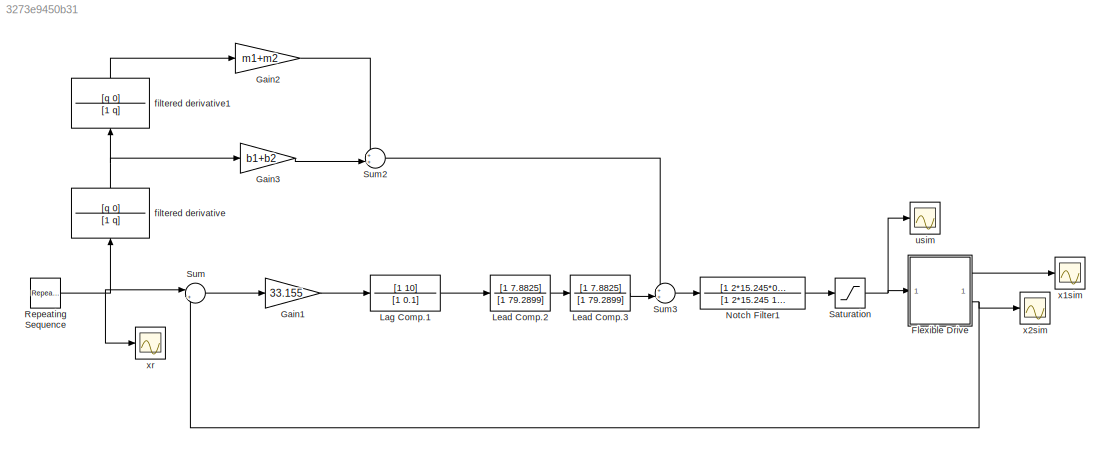
MODEL slx_3273e9450b31
KIND model
CONFIG AbsTol = auto
CONFIG EnableMultiTasking = on
CONFIG FixedStep = Ts
CONFIG MaxStep = auto
CONFIG MinStep = auto
CONFIG RelTol = 1e-3
CONFIG SampleTimeConstraint = Unconstrained
CONFIG SolverName = ode4
CONFIG StartTime = 0.0
CONFIG StopTime = 4
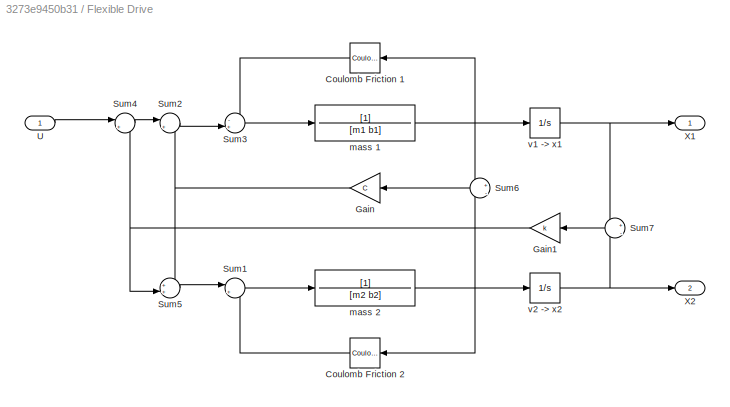
BLOCK [SubSystem] Flexible Drive
BLOCK [Reference] Flexible Drive/Coulomb Friction 1  REF=simulink/Discontinuities/Coulomb &
Viscous Friction
  NameLocation = top
  SourceBlock = simulink/Discontinuities/Coulomb &\nViscous Friction
  SourceType = Coulombic and Viscous Friction
BLOCK [Reference] Flexible Drive/Coulomb Friction 2  REF=simulink/Discontinuities/Coulomb &
Viscous Friction
  SourceBlock = simulink/Discontinuities/Coulomb &\nViscous Friction
  SourceType = Coulombic and Viscous Friction
BLOCK [Gain] Flexible Drive/Gain
  Gain = C
  NameLocation = top
  OutDataTypeStr = Inherit: Same as input
  ParamDataTypeStr = Inherit: Same as input
  SaturateOnIntegerOverflow = on
BLOCK [Gain] Flexible Drive/Gain1
  Gain = k
  NameLocation = top
  OutDataTypeStr = Inherit: Same as input
  ParamDataTypeStr = Inherit: Same as input
  SaturateOnIntegerOverflow = on
BLOCK [Sum] Flexible Drive/Sum1
  Inputs = |+-
  SaturateOnIntegerOverflow = on
BLOCK [Sum] Flexible Drive/Sum2
  Inputs = |+-
  SaturateOnIntegerOverflow = on
BLOCK [Sum] Flexible Drive/Sum3
  Inputs = -+|
  SaturateOnIntegerOverflow = on
BLOCK [Sum] Flexible Drive/Sum4
  Inputs = |+-
  SaturateOnIntegerOverflow = on
BLOCK [Sum] Flexible Drive/Sum5
  Inputs = ++|
  SaturateOnIntegerOverflow = on
BLOCK [Sum] Flexible Drive/Sum6
  Inputs = +|-
  NameLocation = top
  SaturateOnIntegerOverflow = on
BLOCK [Sum] Flexible Drive/Sum7
  Inputs = +|-
  NameLocation = top
  SaturateOnIntegerOverflow = on
BLOCK [Inport] Flexible Drive/U
BLOCK [Outport] Flexible Drive/X1
  VectorParamsAs1DForOutWhenUnconnected = off
BLOCK [Outport] Flexible Drive/X2
  Port = 2
  VectorParamsAs1DForOutWhenUnconnected = off
BLOCK [TransferFcn] Flexible Drive/mass 1
  Denominator = [m1 b1]
  NameLocation = top
BLOCK [TransferFcn] Flexible Drive/mass 2
  Denominator = [m2 b2]
  NameLocation = top
BLOCK [Integrator] Flexible Drive/v1 -> x1
BLOCK [Integrator] Flexible Drive/v2 -> x2
BLOCK [Gain] Gain1
  Gain = 33.155
BLOCK [Gain] Gain2
  Gain = m1+m2
BLOCK [Gain] Gain3
  Gain = b1+b2
BLOCK [TransferFcn] Lag Comp.1
  Denominator = [1 0.1]
  Numerator = [1 10]
BLOCK [TransferFcn] Lead Comp.2
  Denominator = [1 79.2899]
  Numerator = [1 7.8825]
BLOCK [TransferFcn] Lead Comp.3
  Denominator = [1 79.2899]
  Numerator = [1 7.8825]
BLOCK [TransferFcn] Notch Filter1
  Denominator = [1 2*15.245 15.245^2]
  Numerator = [1 2*15.245*0.707 15.245^2]
BLOCK [Reference] Repeating Sequence  REF=simulink/Sources/Repeating
Sequence
  SourceBlock = simulink/Sources/Repeating\nSequence
  SourceType = Repeating table
BLOCK [Saturate] Saturation
  LowerLimit = -8
  UpperLimit = 8
BLOCK [Sum] Sum
  Inputs = |+-
BLOCK [Sum] Sum2
  Inputs = ++|
BLOCK [Sum] Sum3
  Inputs = ++|
BLOCK [TransferFcn] filtered derivative
  Denominator = [1 q]
  NameLocation = left
  Numerator = [q 0]
BLOCK [TransferFcn] filtered derivative1
  Denominator = [1 q]
  NameLocation = left
  Numerator = [q 0]
BLOCK [Scope] usim
  ActiveDisplayYMaximum = 1.53887
  ActiveDisplayYMinimum = -1.46798
  DataLogging = on
  DataLoggingSaveFormat = Structure With Time
  DataLoggingVariableName = usim
  Floating = off
  GraphicalSettings = {"GraphicalSettings":{"LegacySettings":true,"Style":{"Style":{"AxesColor":"[0 0 0]","ChannelNames":[""],"ColorOrder":"[1 1 0.0666666666666667;0.0745098039215686 0.623529411764706 1;1 0.411764705882353 0.16078431372549;0.392156862745098 0.831372549019608 0.0745098039215686;0.717647058823529 0.274509803921569 1;0.0588235294117647 1 1;1 0.0745098039215686 0.650980392156863]","CurrentConfiguration":"e...<+343ch>
  MultipleDisplayCache = [{"MaxYLimMag":1.53887,"MaxYLimReal":1.53887,"MinYLimMag":0,"MinYLimReal":-1.46798,"PlotAsMagnitudePhase":false,"ShowGrid":true,"ShowLegend":false,"Title":"%<SignalLabel>","YLabel":""}]
  NumInputPorts = 1
  WasSavedAsWebScope = on
BLOCK [Scope] x1sim
  ActiveDisplayYMaximum = 51.4234
  ActiveDisplayYMinimum = -5.71381
  DataLogging = on
  DataLoggingSaveFormat = Structure With Time
  DataLoggingVariableName = x1sim
  Floating = off
  GraphicalSettings = {"GraphicalSettings":{"LegacySettings":true,"Style":{"Style":{"AxesColor":"[0 0 0]","ChannelNames":[""],"ColorOrder":"[1 1 0.0666666666666667;0.0745098039215686 0.623529411764706 1;1 0.411764705882353 0.16078431372549;0.392156862745098 0.831372549019608 0.0745098039215686;0.717647058823529 0.274509803921569 1;0.0588235294117647 1 1;1 0.0745098039215686 0.650980392156863]","CurrentConfiguration":"e...<+368ch>
  MultipleDisplayCache = [{"MaxYLimMag":51.4234,"MaxYLimReal":51.4234,"MinYLimMag":0,"MinYLimReal":-5.71381,"PlotAsMagnitudePhase":false,"ShowGrid":true,"ShowLegend":false,"Title":"%<SignalLabel>","YLabel":""}]
  NumInputPorts = 1
  WasSavedAsWebScope = on
  WindowPosition = [431 174 505 420]
BLOCK [Scope] x2sim
  ActiveDisplayYMaximum = 52.36743
  ActiveDisplayYMinimum = -5.81886
  DataLogging = on
  DataLoggingSaveFormat = Structure With Time
  DataLoggingVariableName = x2sim
  Floating = off
  GraphicalSettings = {"GraphicalSettings":{"LegacySettings":true,"Style":{"Style":{"AxesColor":"[0 0 0]","ChannelNames":[""],"ColorOrder":"[1 1 0.0666666666666667;0.0745098039215686 0.623529411764706 1;1 0.411764705882353 0.16078431372549;0.392156862745098 0.831372549019608 0.0745098039215686;0.717647058823529 0.274509803921569 1;0.0588235294117647 1 1;1 0.0745098039215686 0.650980392156863]","CurrentConfiguration":"e...<+368ch>
  MultipleDisplayCache = [{"MaxYLimMag":52.36743,"MaxYLimReal":52.36743,"MinYLimMag":0,"MinYLimReal":-5.81886,"PlotAsMagnitudePhase":false,"ShowGrid":true,"ShowLegend":false,"Title":"%<SignalLabel>","YLabel":""}]
  NumInputPorts = 1
  WasSavedAsWebScope = on
  WindowPosition = [477 171 412 427]
BLOCK [Scope] xr
  ActiveDisplayYMaximum = 56.25
  ActiveDisplayYMinimum = -6.25
  DataLogging = on
  DataLoggingSaveFormat = Structure With Time
  DataLoggingVariableName = xr
  Floating = off
  GraphicalSettings = {"GraphicalSettings":{"LegacySettings":true,"Style":{"Style":{"AxesColor":"[0 0 0]","ChannelNames":[""],"ColorOrder":"[1 1 0.0666666666666667;0.0745098039215686 0.623529411764706 1;1 0.411764705882353 0.16078431372549;0.392156862745098 0.831372549019608 0.0745098039215686;0.717647058823529 0.274509803921569 1;0.0588235294117647 1 1;1 0.0745098039215686 0.650980392156863]","CurrentConfiguration":"e...<+343ch>
  MultipleDisplayCache = [{"MaxYLimMag":56.25,"MaxYLimReal":56.25,"MinYLimMag":0,"MinYLimReal":-6.25,"PlotAsMagnitudePhase":false,"ShowGrid":true,"ShowLegend":false,"Title":"%<SignalLabel>","YLabel":""}]
  NumInputPorts = 1
  WasSavedAsWebScope = on
LINE Flexible Drive/Coulomb Friction 1:1 -> Flexible Drive/Sum3:1
LINE Flexible Drive/Coulomb Friction 2:1 -> Flexible Drive/Sum1:2
NET Flexible Drive/Gain1:1 -> Flexible Drive/Sum4:2, Flexible Drive/Sum5:2
NET Flexible Drive/Gain:1 -> Flexible Drive/Sum2:2, Flexible Drive/Sum5:1
LINE Flexible Drive/Sum1:1 -> Flexible Drive/mass 2:1
LINE Flexible Drive/Sum2:1 -> Flexible Drive/Sum3:2
LINE Flexible Drive/Sum3:1 -> Flexible Drive/mass 1:1
LINE Flexible Drive/Sum4:1 -> Flexible Drive/Sum2:1
LINE Flexible Drive/Sum5:1 -> Flexible Drive/Sum1:1
LINE Flexible Drive/Sum6:1 -> Flexible Drive/Gain:1
LINE Flexible Drive/Sum7:1 -> Flexible Drive/Gain1:1
LINE Flexible Drive/U:1 -> Flexible Drive/Sum4:1
NET Flexible Drive/mass 1:1 -> Flexible Drive/Coulomb Friction 1:1, Flexible Drive/Sum6:1, Flexible Drive/v1 -> x1:1
NET Flexible Drive/mass 2:1 -> Flexible Drive/Coulomb Friction 2:1, Flexible Drive/Sum6:2, Flexible Drive/v2 -> x2:1
NET Flexible Drive/v1 -> x1:1 -> Flexible Drive/Sum7:1, Flexible Drive/X1:1
NET Flexible Drive/v2 -> x2:1 -> Flexible Drive/Sum7:2, Flexible Drive/X2:1
LINE Flexible Drive:1 -> x1sim:1
NET Flexible Drive:2 -> Sum:2, x2sim:1
LINE Gain1:1 -> Lag Comp.1:1
LINE Gain2:1 -> Sum2:1
LINE Gain3:1 -> Sum2:2
LINE Lag Comp.1:1 -> Lead Comp.2:1
LINE Lead Comp.2:1 -> Lead Comp.3:1
LINE Lead Comp.3:1 -> Sum3:2
LINE Notch Filter1:1 -> Saturation:1
NET Repeating Sequence:1 -> Sum:1, filtered derivative:1, xr:1
NET Saturation:1 -> Flexible Drive:1, usim:1
LINE Sum2:1 -> Sum3:1
LINE Sum3:1 -> Notch Filter1:1
LINE Sum:1 -> Gain1:1
LINE filtered derivative1:1 -> Gain2:1
NET filtered derivative:1 -> Gain3:1, filtered derivative1:1
note: NET lines group one-source signal fan-out (src -> all destinations, sorted); 1:1 wires keep LINE
